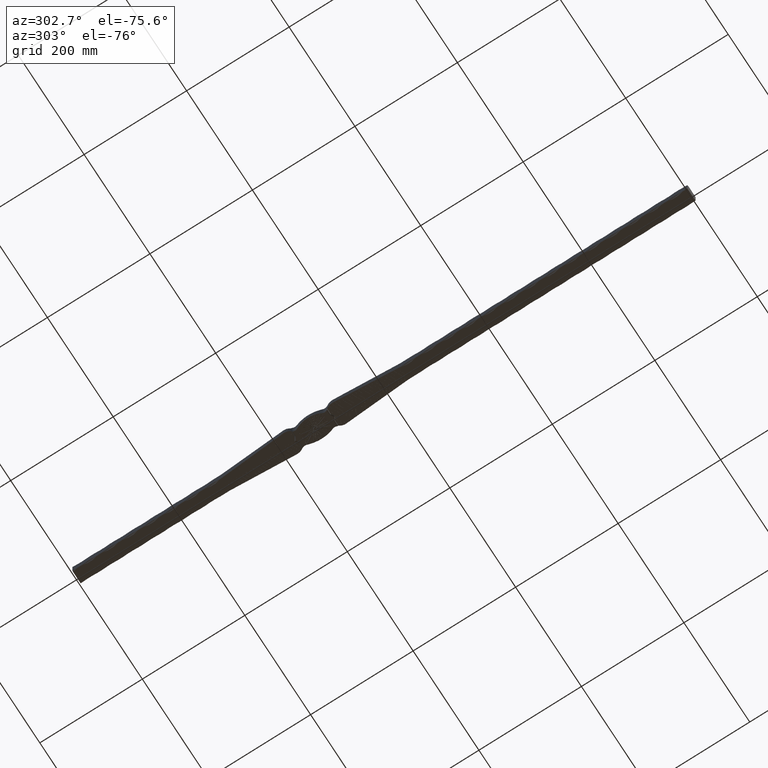
[diagram: clean part render]
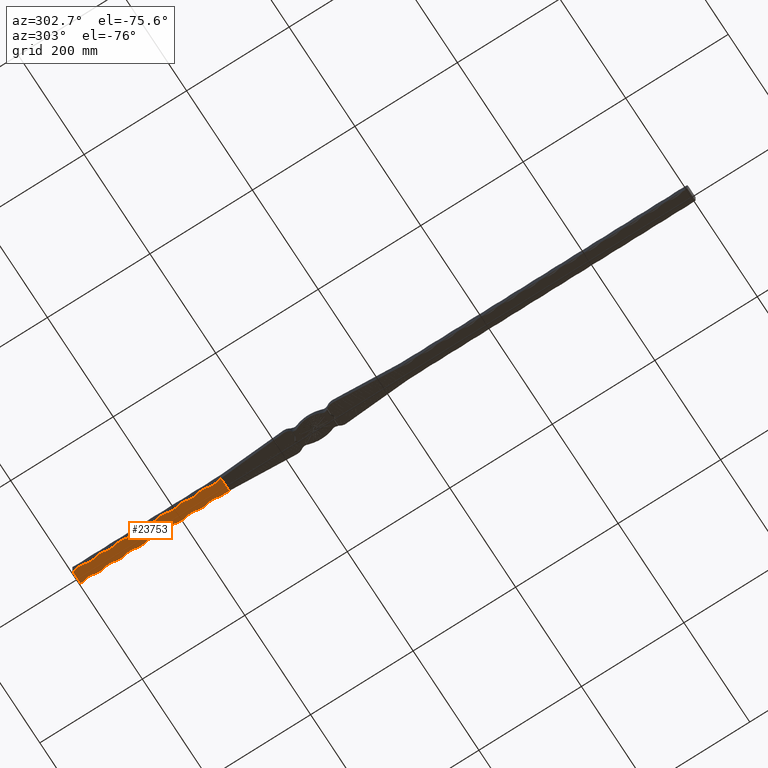
[diagram: same view with one face highlighted and labeled with its STEP entity id]
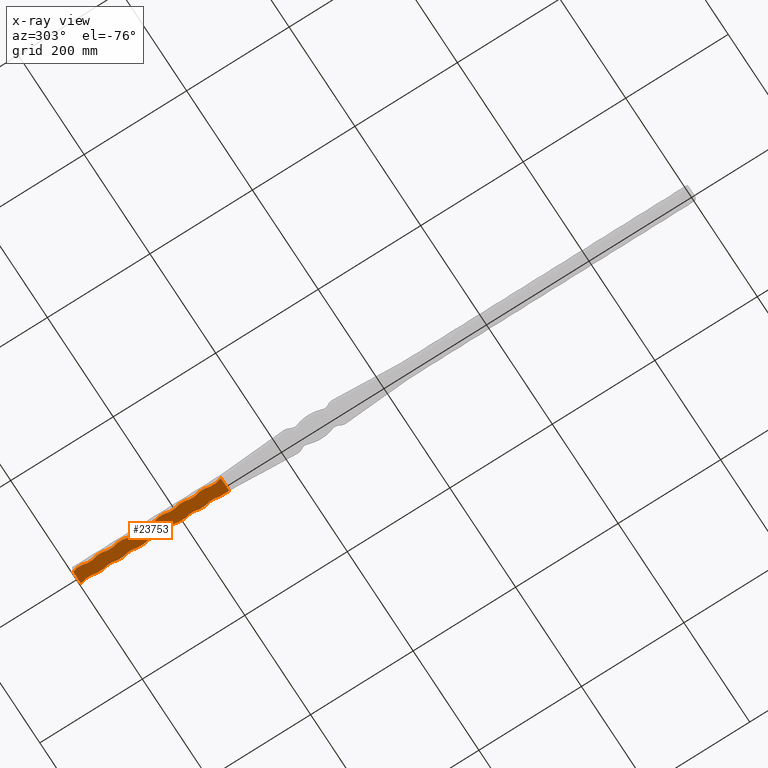
[diagram: x-ray of the same camera — body ghosted, the highlighted face saturated]
A machine part, auxiliary view. The second image highlights one B-rep face of the part: STEP entity #23753.
The next image is the same camera in x-ray: the body ghosted, the highlighted face saturated — about 0% of this face is hidden behind the body in this view.
In plain terms, the highlighted planar face has unit normal (-0, 0, -1).
Its self-contained STEP definition (entity closure, byte-faithful):
#139 = DIRECTION ( 'NONE',  ( 2.775557561562892337E-16, -0.000000000000000000, 1.000000000000000000 ) ) ;
#273 = EDGE_CURVE ( 'NONE', #30974, #14117, #16875, .T. ) ;
#363 = LINE ( 'NONE', #28555, #28546 ) ;
#367 = VERTEX_POINT ( 'NONE', #22693 ) ;
#553 = CARTESIAN_POINT ( 'NONE',  ( 12.50000000000000355, 1007.000000000000114, -12.49999999999994493 ) ) ;
#556 = DIRECTION ( 'NONE',  ( 2.775557561562892337E-16, -0.000000000000000000, 1.000000000000000000 ) ) ;
#690 = EDGE_CURVE ( 'NONE', #28201, #1629, #30927, .T. ) ;
#766 = VERTEX_POINT ( 'NONE', #8427 ) ;
#1231 = CARTESIAN_POINT ( 'NONE',  ( 12.50000000000000355, 967.0000000000000000, -12.49999999999996625 ) ) ;
#1629 = VERTEX_POINT ( 'NONE', #22505 ) ;
#1886 = EDGE_CURVE ( 'NONE', #766, #1629, #18446, .T. ) ;
#1922 = CIRCLE ( 'NONE', #36683, 46.25000000000011369 ) ;
#2035 = EDGE_CURVE ( 'NONE', #367, #10523, #42125, .T. ) ;
#2276 = DIRECTION ( 'NONE',  ( 0.000000000000000000, 1.000000000000000000, 0.000000000000000000 ) ) ;
#2331 = CARTESIAN_POINT ( 'NONE',  ( -12.49999999999999289, 909.9999999999998863, -12.49999999999999645 ) ) ;
#3257 = VERTEX_POINT ( 'NONE', #31233 ) ;
#3271 = DIRECTION ( 'NONE',  ( 2.775557561562892337E-16, -0.000000000000000000, 1.000000000000000000 ) ) ;
#3477 = DIRECTION ( 'NONE',  ( -2.775557561562892337E-16, 0.000000000000000000, -1.000000000000000000 ) ) ;
#3536 = VECTOR ( 'NONE', #31983, 1000.000000000000000 ) ;
#3579 = ORIENTED_EDGE ( 'NONE', *, *, #10886, .T. ) ;
#3680 = ORIENTED_EDGE ( 'NONE', *, *, #35388, .F. ) ;
#4435 = DIRECTION ( 'NONE',  ( -1.000000000000000000, 0.000000000000000000, 2.625527423100026003E-16 ) ) ;
#4523 = DIRECTION ( 'NONE',  ( 0.000000000000000000, 1.000000000000000000, 0.000000000000000000 ) ) ;
#4567 = CARTESIAN_POINT ( 'NONE',  ( -12.49999999999999289, 909.9999999999998863, -12.49999999999999645 ) ) ;
#4614 = VERTEX_POINT ( 'NONE', #34096 ) ;
#4617 = EDGE_LOOP ( 'NONE', ( #24113, #36755, #42880, #25921, #13653, #34471, #18258, #8651, #41269, #3579, #34276, #27166, #29335, #9131, #46396, #3680, #8533, #33948, #40784, #9984, #15760, #46328, #27999, #24443, #43338, #11161, #6140, #42690, #12472, #26729, #26451, #26409, #33403 ) ) ;
#5140 = VERTEX_POINT ( 'NONE', #553 ) ;
#5325 = VERTEX_POINT ( 'NONE', #20382 ) ;
#5524 = CARTESIAN_POINT ( 'NONE',  ( 56.25000000000012079, 1142.000000000000000, -12.49999999999989519 ) ) ;
#5749 = VERTEX_POINT ( 'NONE', #44444 ) ;
#6071 = VECTOR ( 'NONE', #16775, 1000.000000000000000 ) ;
#6140 = ORIENTED_EDGE ( 'NONE', *, *, #25982, .T. ) ;
#6540 = VERTEX_POINT ( 'NONE', #16625 ) ;
#6581 = EDGE_CURVE ( 'NONE', #6540, #5749, #31722, .T. ) ;
#6621 = DIRECTION ( 'NONE',  ( 0.000000000000000000, 1.000000000000000000, 0.000000000000000000 ) ) ;
#6625 = CIRCLE ( 'NONE', #26797, 46.25000000000012790 ) ;
#6773 = VECTOR ( 'NONE', #29011, 1000.000000000000000 ) ;
#7170 = VERTEX_POINT ( 'NONE', #20497 ) ;
#7888 = CARTESIAN_POINT ( 'NONE',  ( 56.25000000000012079, 1101.999999999999773, -12.49999999999991651 ) ) ;
#7989 = LINE ( 'NONE', #39729, #34495 ) ;
#8129 = DIRECTION ( 'NONE',  ( 0.000000000000000000, 1.000000000000000000, 0.000000000000000000 ) ) ;
#8424 = AXIS2_PLACEMENT_3D ( 'NONE', #7888, #37204, #33431 ) ;
#8427 = CARTESIAN_POINT ( 'NONE',  ( 12.49999999999999289, 957.0000000000000000, -12.49999999999998757 ) ) ;
#8533 = ORIENTED_EDGE ( 'NONE', *, *, #35149, .T. ) ;
#8651 = ORIENTED_EDGE ( 'NONE', *, *, #19642, .T. ) ;
#8673 = EDGE_CURVE ( 'NONE', #40317, #7170, #10695, .T. ) ;
#8771 = CARTESIAN_POINT ( 'NONE',  ( -12.49999999999999645, 1061.999999999999773, -12.50000000000000711 ) ) ;
#8826 = CARTESIAN_POINT ( 'NONE',  ( -12.50000000000000000, 991.9999999999998863, -12.50000000000000711 ) ) ;
#9131 = ORIENTED_EDGE ( 'NONE', *, *, #1886, .T. ) ;
#9141 = VECTOR ( 'NONE', #2276, 1000.000000000000000 ) ;
#9319 = CARTESIAN_POINT ( 'NONE',  ( 12.50000000000000355, 909.9999999999998863, -12.50000000000000355 ) ) ;
#9441 = CIRCLE ( 'NONE', #31153, 46.25000000000012790 ) ;
#9512 = AXIS2_PLACEMENT_3D ( 'NONE', #31563, #24495, #27618 ) ;
#9643 = CARTESIAN_POINT ( 'NONE',  ( -56.25000000000012079, 967.0000000000000000, -12.49999999999999467 ) ) ;
#9833 = DIRECTION ( 'NONE',  ( -1.000000000000000000, 0.000000000000000000, 2.625527423100026003E-16 ) ) ;
#9984 = ORIENTED_EDGE ( 'NONE', *, *, #28217, .F. ) ;
#10155 = CIRCLE ( 'NONE', #26393, 46.25000000000011369 ) ;
#10466 = CIRCLE ( 'NONE', #43102, 46.25000000000011369 ) ;
#10523 = VERTEX_POINT ( 'NONE', #36519 ) ;
#10530 = DIRECTION ( 'NONE',  ( -1.000000000000000000, 0.000000000000000000, 2.775557561562892337E-16 ) ) ;
#10592 = CARTESIAN_POINT ( 'NONE',  ( -12.50000000000000000, 1111.999999999999773, -12.50000000000000711 ) ) ;
#10615 = VECTOR ( 'NONE', #8129, 1000.000000000000000 ) ;
#10695 = CIRCLE ( 'NONE', #9512, 46.25000000000011369 ) ;
#10787 = DIRECTION ( 'NONE',  ( -1.000000000000000000, 0.000000000000000000, 2.625527423100025017E-16 ) ) ;
#10886 = EDGE_CURVE ( 'NONE', #367, #5140, #6625, .T. ) ;
#11009 = VERTEX_POINT ( 'NONE', #16446 ) ;
#11161 = ORIENTED_EDGE ( 'NONE', *, *, #36315, .F. ) ;
#11267 = CARTESIAN_POINT ( 'NONE',  ( 56.25000000000012079, 942.0000000000000000, -12.49999999999999822 ) ) ;
#11650 = DIRECTION ( 'NONE',  ( 0.000000000000000000, 1.000000000000000000, 0.000000000000000000 ) ) ;
#11669 = CARTESIAN_POINT ( 'NONE',  ( -56.25000000000012079, 1206.999999999999773, -12.49999999999999467 ) ) ;
#11821 = EDGE_CURVE ( 'NONE', #22824, #12464, #28022, .T. ) ;
#11834 = CIRCLE ( 'NONE', #46700, 46.25000000000012790 ) ;
#12296 = EDGE_CURVE ( 'NONE', #5749, #30974, #34785, .T. ) ;
#12363 = DIRECTION ( 'NONE',  ( -1.000000000000000000, 1.920385772324589682E-14, 2.625527423100025017E-16 ) ) ;
#12388 = EDGE_CURVE ( 'NONE', #5325, #42114, #37107, .T. ) ;
#12464 = VERTEX_POINT ( 'NONE', #24770 ) ;
#12472 = ORIENTED_EDGE ( 'NONE', *, *, #11821, .T. ) ;
#12726 = CARTESIAN_POINT ( 'NONE',  ( 56.25000000000012079, 982.0000000000000000, -12.49999999999997868 ) ) ;
#12790 = DIRECTION ( 'NONE',  ( -1.000000000000000000, 4.800964430811474204E-15, 2.625527423100025017E-16 ) ) ;
#12975 = CARTESIAN_POINT ( 'NONE',  ( 12.50000000000000355, 909.9999999999998863, -12.50000000000000355 ) ) ;
#13214 = AXIS2_PLACEMENT_3D ( 'NONE', #12726, #23897, #16195 ) ;
#13364 = AXIS2_PLACEMENT_3D ( 'NONE', #36251, #29275, #36563 ) ;
#13599 = VERTEX_POINT ( 'NONE', #40722 ) ;
#13653 = ORIENTED_EDGE ( 'NONE', *, *, #18562, .F. ) ;
#14117 = VERTEX_POINT ( 'NONE', #22828 ) ;
#14121 = VERTEX_POINT ( 'NONE', #8771 ) ;
#14242 = CARTESIAN_POINT ( 'NONE',  ( -12.49999999999999645, 1101.999999999999773, -12.50000000000000711 ) ) ;
#14474 = DIRECTION ( 'NONE',  ( 0.000000000000000000, 1.000000000000000000, 0.000000000000000000 ) ) ;
#14659 = DIRECTION ( 'NONE',  ( 0.000000000000000000, 1.000000000000000000, 0.000000000000000000 ) ) ;
#15159 = CIRCLE ( 'NONE', #34132, 46.25000000000011369 ) ;
#15760 = ORIENTED_EDGE ( 'NONE', *, *, #12388, .T. ) ;
#15907 = CARTESIAN_POINT ( 'NONE',  ( -56.25000000000012079, 1087.000000000000000, -12.49999999999999467 ) ) ;
#16195 = DIRECTION ( 'NONE',  ( -1.000000000000000000, 0.000000000000000000, 2.625527423100025017E-16 ) ) ;
#16410 = LINE ( 'NONE', #43377, #6773 ) ;
#16442 = DIRECTION ( 'NONE',  ( 0.000000000000000000, 1.000000000000000000, 0.000000000000000000 ) ) ;
#16446 = CARTESIAN_POINT ( 'NONE',  ( -12.49999999999999645, 1181.999999999999773, -12.50000000000000711 ) ) ;
#16505 = CARTESIAN_POINT ( 'NONE',  ( -10.53279864208658090, 1200.000000000000000, -12.50000000000000711 ) ) ;
#16625 = CARTESIAN_POINT ( 'NONE',  ( 12.49999999999999289, 1197.000000000000000, -12.49999999999986144 ) ) ;
#16775 = DIRECTION ( 'NONE',  ( -1.000000000000000000, -0.000000000000000000, 2.775557561562891844E-16 ) ) ;
#16875 = CIRCLE ( 'NONE', #32167, 46.25000000000011369 ) ;
#17299 = LINE ( 'NONE', #18614, #20697 ) ;
#17444 = VERTEX_POINT ( 'NONE', #1231 ) ;
#17550 = VECTOR ( 'NONE', #11650, 1000.000000000000000 ) ;
#17937 = VERTEX_POINT ( 'NONE', #44825 ) ;
#18162 = EDGE_CURVE ( 'NONE', #19179, #29967, #16410, .T. ) ;
#18172 = DIRECTION ( 'NONE',  ( -1.000000000000000000, 0.000000000000000000, 2.625527423100026003E-16 ) ) ;
#18223 = LINE ( 'NONE', #38771, #3536 ) ;
#18258 = ORIENTED_EDGE ( 'NONE', *, *, #27085, .F. ) ;
#18446 = CIRCLE ( 'NONE', #21975, 46.25000000000012790 ) ;
#18534 = CARTESIAN_POINT ( 'NONE',  ( -12.50000000000000000, 952.0000000000000000, -12.50000000000000711 ) ) ;
#18562 = EDGE_CURVE ( 'NONE', #13599, #3257, #28219, .T. ) ;
#18614 = CARTESIAN_POINT ( 'NONE',  ( -12.49999999999999289, 909.9999999999998863, -12.49999999999999645 ) ) ;
#19179 = VERTEX_POINT ( 'NONE', #43468 ) ;
#19462 = DIRECTION ( 'NONE',  ( 2.775557561562892337E-16, -0.000000000000000000, 1.000000000000000000 ) ) ;
#19642 = EDGE_CURVE ( 'NONE', #22427, #10523, #11834, .T. ) ;
#19673 = DIRECTION ( 'NONE',  ( -2.775557561562892337E-16, 0.000000000000000000, -1.000000000000000000 ) ) ;
#19829 = DIRECTION ( 'NONE',  ( -1.000000000000000000, 0.000000000000000000, 2.625527423100026003E-16 ) ) ;
#19964 = VECTOR ( 'NONE', #44077, 1000.000000000000000 ) ;
#20141 = DIRECTION ( 'NONE',  ( 0.000000000000000000, 1.000000000000000000, 0.000000000000000000 ) ) ;
#20202 = CARTESIAN_POINT ( 'NONE',  ( -12.49999999999999645, 942.0000000000000000, -12.50000000000000711 ) ) ;
#20382 = CARTESIAN_POINT ( 'NONE',  ( -12.49999999999999645, 982.0000000000000000, -12.50000000000000711 ) ) ;
#20497 = CARTESIAN_POINT ( 'NONE',  ( -12.50000000000000000, 911.9999999999998863, -12.50000000000000711 ) ) ;
#20697 = VECTOR ( 'NONE', #14659, 1000.000000000000000 ) ;
#20856 = EDGE_CURVE ( 'NONE', #766, #17444, #18223, .T. ) ;
#21094 = EDGE_CURVE ( 'NONE', #40317, #33367, #23207, .T. ) ;
#21521 = DIRECTION ( 'NONE',  ( -1.000000000000000000, 4.800964430811474204E-15, 2.625527423100025017E-16 ) ) ;
#21834 = VECTOR ( 'NONE', #23543, 1000.000000000000000 ) ;
#21869 = VECTOR ( 'NONE', #14474, 1000.000000000000000 ) ;
#21889 = CARTESIAN_POINT ( 'NONE',  ( 12.50000000000000355, 909.9999999999998863, -12.50000000000000355 ) ) ;
#21975 = AXIS2_PLACEMENT_3D ( 'NONE', #11267, #556, #10787 ) ;
#22079 = LINE ( 'NONE', #41323, #35039 ) ;
#22427 = VERTEX_POINT ( 'NONE', #39730 ) ;
#22505 = CARTESIAN_POINT ( 'NONE',  ( 12.50000000000000355, 926.9999999999998863, -12.49999999999998757 ) ) ;
#22693 = CARTESIAN_POINT ( 'NONE',  ( 12.49999999999999289, 1037.000000000000000, -12.49999999999994493 ) ) ;
#22824 = VERTEX_POINT ( 'NONE', #25177 ) ;
#22828 = CARTESIAN_POINT ( 'NONE',  ( -12.50000000000000000, 1192.000000000000000, -12.50000000000000711 ) ) ;
#23198 = EDGE_CURVE ( 'NONE', #14121, #29967, #40530, .T. ) ;
#23207 = LINE ( 'NONE', #4567, #17550 ) ;
#23334 = EDGE_CURVE ( 'NONE', #13599, #17937, #27564, .T. ) ;
#23466 = CIRCLE ( 'NONE', #13214, 46.25000000000012790 ) ;
#23522 = CARTESIAN_POINT ( 'NONE',  ( -12.50000000000000000, 1032.000000000000000, -12.50000000000000711 ) ) ;
#23526 = EDGE_CURVE ( 'NONE', #4614, #3257, #37171, .T. ) ;
#23543 = DIRECTION ( 'NONE',  ( 0.000000000000000000, 1.000000000000000000, 0.000000000000000000 ) ) ;
#23603 = CARTESIAN_POINT ( 'NONE',  ( -12.49999999999999289, 909.9999999999998863, -12.49999999999999645 ) ) ;
#23753 = ADVANCED_FACE ( 'NONE', ( #25915 ), #42685, .T. ) ;
#23897 = DIRECTION ( 'NONE',  ( 2.775557561562892337E-16, -0.000000000000000000, 1.000000000000000000 ) ) ;
#24025 = CARTESIAN_POINT ( 'NONE',  ( 12.49999999999998757, 909.9999999999998863, -12.50000000000001066 ) ) ;
#24047 = EDGE_CURVE ( 'NONE', #11009, #12464, #15159, .T. ) ;
#24049 = DIRECTION ( 'NONE',  ( -2.775557561562892337E-16, 0.000000000000000000, -1.000000000000000000 ) ) ;
#24113 = ORIENTED_EDGE ( 'NONE', *, *, #6581, .F. ) ;
#24443 = ORIENTED_EDGE ( 'NONE', *, *, #23198, .F. ) ;
#24495 = DIRECTION ( 'NONE',  ( -2.775557561562892337E-16, 0.000000000000000000, -1.000000000000000000 ) ) ;
#24578 = CARTESIAN_POINT ( 'NONE',  ( -12.49999999999999289, 909.9999999999998863, -12.49999999999999645 ) ) ;
#24770 = CARTESIAN_POINT ( 'NONE',  ( -12.50000000000000000, 1152.000000000000000, -12.50000000000000711 ) ) ;
#25177 = CARTESIAN_POINT ( 'NONE',  ( -12.49999999999999645, 1142.000000000000000, -12.50000000000000711 ) ) ;
#25192 = VECTOR ( 'NONE', #4523, 1000.000000000000000 ) ;
#25245 = EDGE_CURVE ( 'NONE', #6540, #35847, #9441, .T. ) ;
#25298 = EDGE_CURVE ( 'NONE', #31787, #5140, #31426, .T. ) ;
#25346 = CARTESIAN_POINT ( 'NONE',  ( 56.25000000000012079, 1182.000000000000000, -12.49999999999987388 ) ) ;
#25574 = DIRECTION ( 'NONE',  ( -2.775557561562892337E-16, 0.000000000000000000, -1.000000000000000000 ) ) ;
#25731 = CARTESIAN_POINT ( 'NONE',  ( -56.25000000000012079, 1047.000000000000000, -12.49999999999999467 ) ) ;
#25915 = FACE_OUTER_BOUND ( 'NONE', #4617, .T. ) ;
#25921 = ORIENTED_EDGE ( 'NONE', *, *, #23526, .T. ) ;
#25982 = EDGE_CURVE ( 'NONE', #36679, #28357, #17299, .T. ) ;
#25987 = EDGE_CURVE ( 'NONE', #19179, #42114, #30246, .T. ) ;
#26393 = AXIS2_PLACEMENT_3D ( 'NONE', #15907, #37498, #27218 ) ;
#26402 = CARTESIAN_POINT ( 'NONE',  ( 12.50000000000000355, 1167.000000000000000, -12.49999999999986144 ) ) ;
#26409 = ORIENTED_EDGE ( 'NONE', *, *, #273, .F. ) ;
#26451 = ORIENTED_EDGE ( 'NONE', *, *, #32940, .T. ) ;
#26729 = ORIENTED_EDGE ( 'NONE', *, *, #24047, .F. ) ;
#26797 = AXIS2_PLACEMENT_3D ( 'NONE', #41039, #19462, #12363 ) ;
#26896 = CARTESIAN_POINT ( 'NONE',  ( -56.25000000000012079, 1166.999999999999773, -12.49999999999999467 ) ) ;
#27085 = EDGE_CURVE ( 'NONE', #22427, #17937, #42029, .T. ) ;
#27166 = ORIENTED_EDGE ( 'NONE', *, *, #30905, .T. ) ;
#27218 = DIRECTION ( 'NONE',  ( -1.000000000000000000, 0.000000000000000000, 2.625527423100026003E-16 ) ) ;
#27564 = CIRCLE ( 'NONE', #8424, 46.25000000000012790 ) ;
#27618 = DIRECTION ( 'NONE',  ( -1.000000000000000000, 0.000000000000000000, 2.625527423100026003E-16 ) ) ;
#27999 = ORIENTED_EDGE ( 'NONE', *, *, #18162, .T. ) ;
#28022 = LINE ( 'NONE', #2331, #41042 ) ;
#28201 = VERTEX_POINT ( 'NONE', #24025 ) ;
#28217 = EDGE_CURVE ( 'NONE', #5325, #33367, #1922, .T. ) ;
#28219 = LINE ( 'NONE', #9319, #38954 ) ;
#28357 = VERTEX_POINT ( 'NONE', #10592 ) ;
#28399 = DIRECTION ( 'NONE',  ( 0.000000000000000000, 1.000000000000000000, 0.000000000000000000 ) ) ;
#28546 = VECTOR ( 'NONE', #28399, 1000.000000000000000 ) ;
#28555 = CARTESIAN_POINT ( 'NONE',  ( -12.49999999999999289, 909.9999999999998863, -12.49999999999999645 ) ) ;
#29011 = DIRECTION ( 'NONE',  ( 0.000000000000000000, 1.000000000000000000, 0.000000000000000000 ) ) ;
#29275 = DIRECTION ( 'NONE',  ( -2.775557561562892337E-16, 0.000000000000000000, -1.000000000000000000 ) ) ;
#29335 = ORIENTED_EDGE ( 'NONE', *, *, #20856, .F. ) ;
#29443 = DIRECTION ( 'NONE',  ( -2.775557561562892337E-16, 0.000000000000000000, -1.000000000000000000 ) ) ;
#29967 = VERTEX_POINT ( 'NONE', #23522 ) ;
#30221 = LINE ( 'NONE', #43750, #25192 ) ;
#30246 = CIRCLE ( 'NONE', #13364, 46.25000000000011369 ) ;
#30340 = CARTESIAN_POINT ( 'NONE',  ( -12.49999999999999289, 909.9999999999998863, -12.49999999999999645 ) ) ;
#30905 = EDGE_CURVE ( 'NONE', #31787, #17444, #23466, .T. ) ;
#30927 = LINE ( 'NONE', #39110, #10615 ) ;
#30974 = VERTEX_POINT ( 'NONE', #16505 ) ;
#30979 = EDGE_CURVE ( 'NONE', #22824, #28357, #10466, .T. ) ;
#31065 = CARTESIAN_POINT ( 'NONE',  ( 12.50000000000000355, 909.9999999999998863, -12.50000000000000355 ) ) ;
#31153 = AXIS2_PLACEMENT_3D ( 'NONE', #25346, #139, #33544 ) ;
#31233 = CARTESIAN_POINT ( 'NONE',  ( 12.50000000000000355, 1127.000000000000000, -12.49999999999988276 ) ) ;
#31426 = LINE ( 'NONE', #21889, #21869 ) ;
#31563 = CARTESIAN_POINT ( 'NONE',  ( -56.25000000000012079, 926.9999999999998863, -12.49999999999999467 ) ) ;
#31722 = LINE ( 'NONE', #12975, #9141 ) ;
#31754 = CARTESIAN_POINT ( 'NONE',  ( -56.25000000000012079, 1127.000000000000000, -12.49999999999999467 ) ) ;
#31787 = VERTEX_POINT ( 'NONE', #36883 ) ;
#31983 = DIRECTION ( 'NONE',  ( 0.000000000000000000, 1.000000000000000000, 0.000000000000000000 ) ) ;
#32077 = CARTESIAN_POINT ( 'NONE',  ( 56.25000000000012079, 1061.999999999999773, -12.49999999999993605 ) ) ;
#32167 = AXIS2_PLACEMENT_3D ( 'NONE', #11669, #29443, #4435 ) ;
#32940 = EDGE_CURVE ( 'NONE', #11009, #14117, #34586, .T. ) ;
#33367 = VERTEX_POINT ( 'NONE', #18534 ) ;
#33403 = ORIENTED_EDGE ( 'NONE', *, *, #12296, .F. ) ;
#33431 = DIRECTION ( 'NONE',  ( -1.000000000000000000, 4.800964430811474204E-15, 2.625527423100025017E-16 ) ) ;
#33544 = DIRECTION ( 'NONE',  ( -1.000000000000000000, 4.800964430811474204E-15, 2.625527423100025017E-16 ) ) ;
#33948 = ORIENTED_EDGE ( 'NONE', *, *, #8673, .F. ) ;
#34060 = DIRECTION ( 'NONE',  ( 0.000000000000000000, 1.000000000000000000, 0.000000000000000000 ) ) ;
#34096 = CARTESIAN_POINT ( 'NONE',  ( 12.49999999999999289, 1157.000000000000000, -12.49999999999988276 ) ) ;
#34132 = AXIS2_PLACEMENT_3D ( 'NONE', #26896, #19673, #19829 ) ;
#34276 = ORIENTED_EDGE ( 'NONE', *, *, #25298, .F. ) ;
#34471 = ORIENTED_EDGE ( 'NONE', *, *, #23334, .T. ) ;
#34495 = VECTOR ( 'NONE', #43334, 1000.000000000000000 ) ;
#34586 = LINE ( 'NONE', #30340, #19964 ) ;
#34785 = LINE ( 'NONE', #38350, #6071 ) ;
#35039 = VECTOR ( 'NONE', #34060, 1000.000000000000000 ) ;
#35149 = EDGE_CURVE ( 'NONE', #39364, #7170, #22079, .T. ) ;
#35388 = EDGE_CURVE ( 'NONE', #39364, #28201, #7989, .T. ) ;
#35635 = AXIS2_PLACEMENT_3D ( 'NONE', #5524, #37532, #12790 ) ;
#35847 = VERTEX_POINT ( 'NONE', #26402 ) ;
#36251 = CARTESIAN_POINT ( 'NONE',  ( -56.25000000000012079, 1006.999999999999886, -12.49999999999999467 ) ) ;
#36315 = EDGE_CURVE ( 'NONE', #36679, #36760, #10155, .T. ) ;
#36519 = CARTESIAN_POINT ( 'NONE',  ( 12.50000000000000355, 1047.000000000000000, -12.49999999999992362 ) ) ;
#36563 = DIRECTION ( 'NONE',  ( -1.000000000000000000, 0.000000000000000000, 2.625527423100026003E-16 ) ) ;
#36679 = VERTEX_POINT ( 'NONE', #14242 ) ;
#36683 = AXIS2_PLACEMENT_3D ( 'NONE', #9643, #41835, #42145 ) ;
#36755 = ORIENTED_EDGE ( 'NONE', *, *, #25245, .T. ) ;
#36760 = VERTEX_POINT ( 'NONE', #46409 ) ;
#36883 = CARTESIAN_POINT ( 'NONE',  ( 12.49999999999999289, 997.0000000000000000, -12.49999999999996625 ) ) ;
#37107 = LINE ( 'NONE', #46369, #45505 ) ;
#37171 = CIRCLE ( 'NONE', #35635, 46.25000000000012790 ) ;
#37204 = DIRECTION ( 'NONE',  ( 2.775557561562892337E-16, -0.000000000000000000, 1.000000000000000000 ) ) ;
#37498 = DIRECTION ( 'NONE',  ( -2.775557561562892337E-16, 0.000000000000000000, -1.000000000000000000 ) ) ;
#37532 = DIRECTION ( 'NONE',  ( 2.775557561562892337E-16, -0.000000000000000000, 1.000000000000000000 ) ) ;
#38079 = AXIS2_PLACEMENT_3D ( 'NONE', #25731, #25574, #18172 ) ;
#38350 = CARTESIAN_POINT ( 'NONE',  ( -12.49999999999999289, 1200.000000000000000, -12.49999999999999645 ) ) ;
#38771 = CARTESIAN_POINT ( 'NONE',  ( 12.50000000000000355, 909.9999999999998863, -12.50000000000000355 ) ) ;
#38934 = DIRECTION ( 'NONE',  ( 0.000000000000000000, 1.000000000000000000, 0.000000000000000000 ) ) ;
#38954 = VECTOR ( 'NONE', #16442, 1000.000000000000000 ) ;
#39110 = CARTESIAN_POINT ( 'NONE',  ( 12.50000000000000355, 909.9999999999998863, -12.50000000000000355 ) ) ;
#39364 = VERTEX_POINT ( 'NONE', #23603 ) ;
#39621 = EDGE_CURVE ( 'NONE', #4614, #35847, #30221, .T. ) ;
#39729 = CARTESIAN_POINT ( 'NONE',  ( -12.49999999999999112, 909.9999999999998863, -12.50000000000000000 ) ) ;
#39730 = CARTESIAN_POINT ( 'NONE',  ( 12.49999999999999289, 1077.000000000000000, -12.49999999999992362 ) ) ;
#39967 = EDGE_CURVE ( 'NONE', #14121, #36760, #363, .T. ) ;
#40317 = VERTEX_POINT ( 'NONE', #20202 ) ;
#40530 = CIRCLE ( 'NONE', #38079, 46.25000000000011369 ) ;
#40722 = CARTESIAN_POINT ( 'NONE',  ( 12.49999999999999289, 1117.000000000000000, -12.49999999999990408 ) ) ;
#40784 = ORIENTED_EDGE ( 'NONE', *, *, #21094, .T. ) ;
#41039 = CARTESIAN_POINT ( 'NONE',  ( 56.25000000000012079, 1022.000000000000000, -12.49999999999995737 ) ) ;
#41042 = VECTOR ( 'NONE', #20141, 1000.000000000000000 ) ;
#41269 = ORIENTED_EDGE ( 'NONE', *, *, #2035, .F. ) ;
#41323 = CARTESIAN_POINT ( 'NONE',  ( -12.49999999999999289, 909.9999999999998863, -12.49999999999999645 ) ) ;
#41392 = AXIS2_PLACEMENT_3D ( 'NONE', #24578, #3477, #10530 ) ;
#41835 = DIRECTION ( 'NONE',  ( -2.775557561562892337E-16, 0.000000000000000000, -1.000000000000000000 ) ) ;
#42029 = LINE ( 'NONE', #31065, #46561 ) ;
#42114 = VERTEX_POINT ( 'NONE', #8826 ) ;
#42125 = LINE ( 'NONE', #44975, #21834 ) ;
#42145 = DIRECTION ( 'NONE',  ( -1.000000000000000000, 0.000000000000000000, 2.625527423100026003E-16 ) ) ;
#42685 = PLANE ( 'NONE',  #41392 ) ;
#42690 = ORIENTED_EDGE ( 'NONE', *, *, #30979, .F. ) ;
#42880 = ORIENTED_EDGE ( 'NONE', *, *, #39621, .F. ) ;
#43102 = AXIS2_PLACEMENT_3D ( 'NONE', #31754, #24049, #9833 ) ;
#43334 = DIRECTION ( 'NONE',  ( 1.000000000000000000, 0.000000000000000000, 0.000000000000000000 ) ) ;
#43338 = ORIENTED_EDGE ( 'NONE', *, *, #39967, .T. ) ;
#43377 = CARTESIAN_POINT ( 'NONE',  ( -12.49999999999999289, 909.9999999999998863, -12.49999999999999645 ) ) ;
#43468 = CARTESIAN_POINT ( 'NONE',  ( -12.49999999999999645, 1021.999999999999773, -12.50000000000000711 ) ) ;
#43750 = CARTESIAN_POINT ( 'NONE',  ( 12.50000000000000355, 909.9999999999998863, -12.50000000000000355 ) ) ;
#44077 = DIRECTION ( 'NONE',  ( 0.000000000000000000, 1.000000000000000000, 0.000000000000000000 ) ) ;
#44444 = CARTESIAN_POINT ( 'NONE',  ( 12.50000000000000355, 1200.000000000000000, -12.50000000000000355 ) ) ;
#44825 = CARTESIAN_POINT ( 'NONE',  ( 12.50000000000000355, 1087.000000000000000, -12.49999999999990408 ) ) ;
#44975 = CARTESIAN_POINT ( 'NONE',  ( 12.50000000000000355, 909.9999999999998863, -12.50000000000000355 ) ) ;
#45505 = VECTOR ( 'NONE', #6621, 1000.000000000000000 ) ;
#46328 = ORIENTED_EDGE ( 'NONE', *, *, #25987, .F. ) ;
#46369 = CARTESIAN_POINT ( 'NONE',  ( -12.49999999999999289, 909.9999999999998863, -12.49999999999999645 ) ) ;
#46396 = ORIENTED_EDGE ( 'NONE', *, *, #690, .F. ) ;
#46409 = CARTESIAN_POINT ( 'NONE',  ( -12.50000000000000000, 1071.999999999999773, -12.50000000000000711 ) ) ;
#46561 = VECTOR ( 'NONE', #38934, 1000.000000000000000 ) ;
#46700 = AXIS2_PLACEMENT_3D ( 'NONE', #32077, #3271, #21521 ) ;